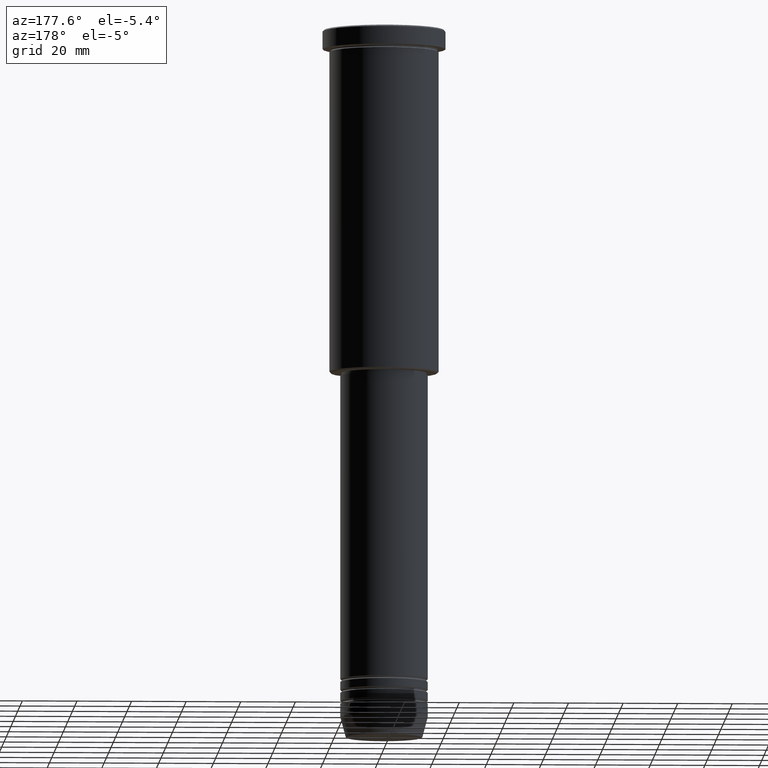
[diagram: clean part render]
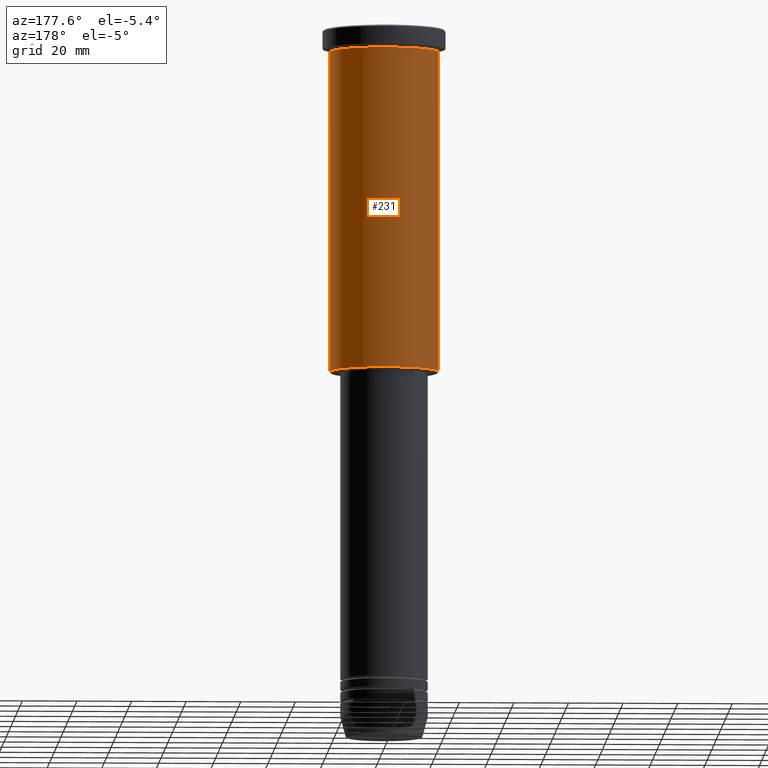
[diagram: same view with one face highlighted and labeled with its STEP entity id]
A machine part, auxiliary view. The second image highlights one B-rep face of the part: STEP entity #231.
In plain terms, the highlighted cylindrical surface (partial cylindrical patch) has radius 20 mm, axis along (-0, -0, 1).
Its self-contained STEP definition (entity closure, byte-faithful):
#30 = CIRCLE ( 'NONE', #815, 20.00000000000000355 ) ;
#48 = VERTEX_POINT ( 'NONE', #599 ) ;
#89 = CARTESIAN_POINT ( 'NONE',  ( -20.00000000000000355, 2.449293598294706907E-15, 0.000000000000000000 ) ) ;
#107 = CIRCLE ( 'NONE', #768, 20.00000000000000000 ) ;
#147 = DIRECTION ( 'NONE',  ( -1.000000000000000000, 0.000000000000000000, 0.000000000000000000 ) ) ;
#231 = ADVANCED_FACE ( 'NONE', ( #1086 ), #983, .T. ) ;
#262 = CARTESIAN_POINT ( 'NONE',  ( -20.00000000000000000, 2.449293598294706513E-15, -7.999999999999994671 ) ) ;
#350 = DIRECTION ( 'NONE',  ( 1.000000000000000000, 0.000000000000000000, 0.000000000000000000 ) ) ;
#405 = DIRECTION ( 'NONE',  ( -0.000000000000000000, -0.000000000000000000, 1.000000000000000000 ) ) ;
#434 = DIRECTION ( 'NONE',  ( -0.000000000000000000, -0.000000000000000000, 1.000000000000000000 ) ) ;
#451 = DIRECTION ( 'NONE',  ( -0.000000000000000000, -0.000000000000000000, 1.000000000000000000 ) ) ;
#491 = ORIENTED_EDGE ( 'NONE', *, *, #724, .F. ) ;
#516 = LINE ( 'NONE', #1048, #841 ) ;
#563 = LINE ( 'NONE', #89, #1175 ) ;
#570 = DIRECTION ( 'NONE',  ( -0.000000000000000000, -0.000000000000000000, 1.000000000000000000 ) ) ;
#591 = CARTESIAN_POINT ( 'NONE',  ( 0.000000000000000000, 0.000000000000000000, -125.5000000000000000 ) ) ;
#599 = CARTESIAN_POINT ( 'NONE',  ( -20.00000000000000355, 2.449293598294706907E-15, -125.5000000000000000 ) ) ;
#688 = ORIENTED_EDGE ( 'NONE', *, *, #869, .F. ) ;
#709 = CARTESIAN_POINT ( 'NONE',  ( 20.00000000000000355, 0.000000000000000000, -125.5000000000000000 ) ) ;
#724 = EDGE_CURVE ( 'NONE', #1025, #1064, #516, .T. ) ;
#768 = AXIS2_PLACEMENT_3D ( 'NONE', #888, #884, #350 ) ;
#806 = ORIENTED_EDGE ( 'NONE', *, *, #930, .T. ) ;
#815 = AXIS2_PLACEMENT_3D ( 'NONE', #591, #570, #147 ) ;
#841 = VECTOR ( 'NONE', #405, 1000.000000000000000 ) ;
#846 = EDGE_LOOP ( 'NONE', ( #806, #1164, #688, #491 ) ) ;
#869 = EDGE_CURVE ( 'NONE', #1064, #902, #107, .T. ) ;
#884 = DIRECTION ( 'NONE',  ( -0.000000000000000000, -0.000000000000000000, 1.000000000000000000 ) ) ;
#888 = CARTESIAN_POINT ( 'NONE',  ( 0.000000000000000000, 0.000000000000000000, -7.999999999999994671 ) ) ;
#902 = VERTEX_POINT ( 'NONE', #262 ) ;
#930 = EDGE_CURVE ( 'NONE', #1025, #48, #30, .T. ) ;
#978 = CARTESIAN_POINT ( 'NONE',  ( 0.000000000000000000, 0.000000000000000000, 0.000000000000000000 ) ) ;
#983 = CYLINDRICAL_SURFACE ( 'NONE', #1016, 20.00000000000000355 ) ;
#997 = DIRECTION ( 'NONE',  ( 1.000000000000000000, 0.000000000000000000, 0.000000000000000000 ) ) ;
#1016 = AXIS2_PLACEMENT_3D ( 'NONE', #978, #434, #997 ) ;
#1025 = VERTEX_POINT ( 'NONE', #709 ) ;
#1048 = CARTESIAN_POINT ( 'NONE',  ( 20.00000000000000355, 0.000000000000000000, 0.000000000000000000 ) ) ;
#1064 = VERTEX_POINT ( 'NONE', #1152 ) ;
#1086 = FACE_OUTER_BOUND ( 'NONE', #846, .T. ) ;
#1152 = CARTESIAN_POINT ( 'NONE',  ( 20.00000000000000000, 0.000000000000000000, -7.999999999999994671 ) ) ;
#1164 = ORIENTED_EDGE ( 'NONE', *, *, #1168, .T. ) ;
#1168 = EDGE_CURVE ( 'NONE', #48, #902, #563, .T. ) ;
#1175 = VECTOR ( 'NONE', #451, 1000.000000000000000 ) ;